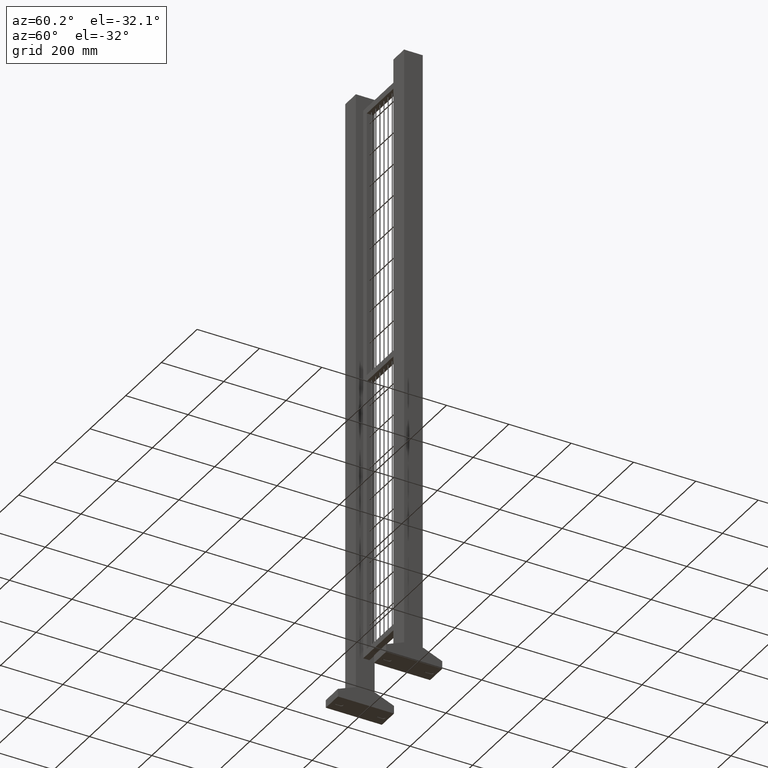
[diagram: clean part render]
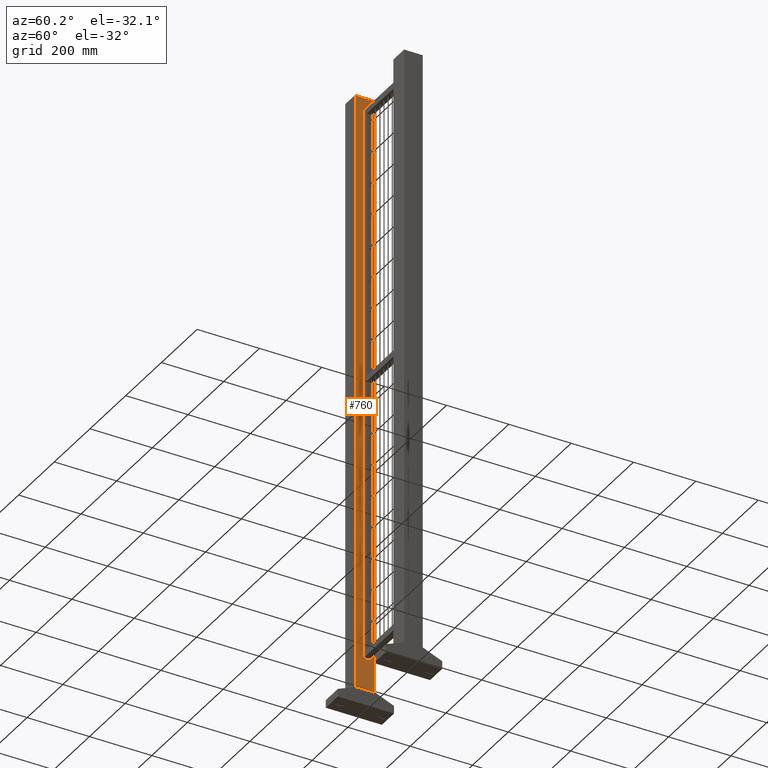
[diagram: same view with one face highlighted and labeled with its STEP entity id]
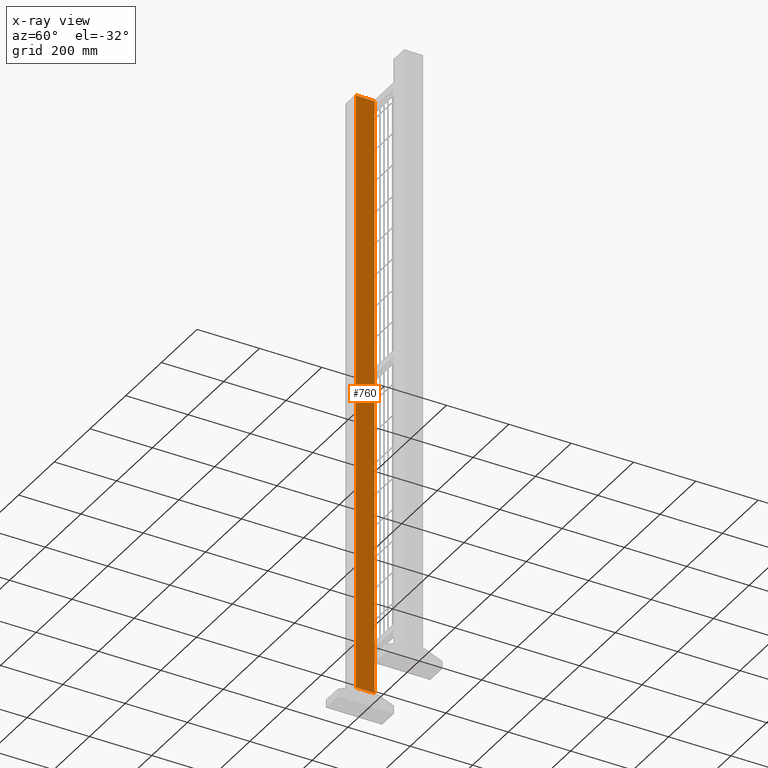
[diagram: x-ray of the same camera — body ghosted, the highlighted face saturated]
A machine part, auxiliary view. The second image highlights one B-rep face of the part: STEP entity #760.
The next image is the same camera in x-ray: the body ghosted, the highlighted face saturated — about 0% of this face is hidden behind the body in this view.
In plain terms, the highlighted planar face has unit normal (-1, -0, 0).
Its self-contained STEP definition (entity closure, byte-faithful):
#142=LINE('',#2657,#236);
#145=LINE('',#2663,#239);
#148=LINE('',#2669,#242);
#151=LINE('',#2674,#245);
#236=VECTOR('',#2261,1.);
#239=VECTOR('',#2266,1.);
#242=VECTOR('',#2271,1.);
#245=VECTOR('',#2276,1.);
#565=PLANE('',#1834);
#646=FACE_OUTER_BOUND('',#1017,.T.);
#760=ADVANCED_FACE('',(#646),#565,.F.);
#1017=EDGE_LOOP('',(#1319,#1320,#1321,#1322));
#1319=ORIENTED_EDGE('',*,*,#1591,.F.);
#1320=ORIENTED_EDGE('',*,*,#1600,.F.);
#1321=ORIENTED_EDGE('',*,*,#1597,.F.);
#1322=ORIENTED_EDGE('',*,*,#1594,.F.);
#1441=VERTEX_POINT('',#2656);
#1442=VERTEX_POINT('',#2658);
#1444=VERTEX_POINT('',#2664);
#1446=VERTEX_POINT('',#2670);
#1591=EDGE_CURVE('',#1441,#1442,#142,.T.);
#1594=EDGE_CURVE('',#1442,#1444,#145,.T.);
#1597=EDGE_CURVE('',#1444,#1446,#148,.T.);
#1600=EDGE_CURVE('',#1446,#1441,#151,.T.);
#1834=AXIS2_PLACEMENT_3D('',#2676,#2279,#2280);
#2261=DIRECTION('',(0.,0.,-1.));
#2266=DIRECTION('',(-1.,0.,0.));
#2271=DIRECTION('',(1.78286071528963E-18,0.,1.));
#2276=DIRECTION('',(1.,0.,0.));
#2279=DIRECTION('',(0.,1.,0.));
#2280=DIRECTION('',(0.,0.,1.));
#2656=CARTESIAN_POINT('',(30.,-30.,1996.));
#2657=CARTESIAN_POINT('',(30.,-30.,1996.));
#2658=CARTESIAN_POINT('',(30.,-30.,50.));
#2663=CARTESIAN_POINT('',(30.,-30.,50.));
#2664=CARTESIAN_POINT('',(-30.,-30.,50.));
#2669=CARTESIAN_POINT('',(-30.,-30.,50.));
#2670=CARTESIAN_POINT('',(-30.,-30.,1996.));
#2674=CARTESIAN_POINT('',(-30.,-30.,1996.));
#2676=CARTESIAN_POINT('',(0.,-30.,0.));